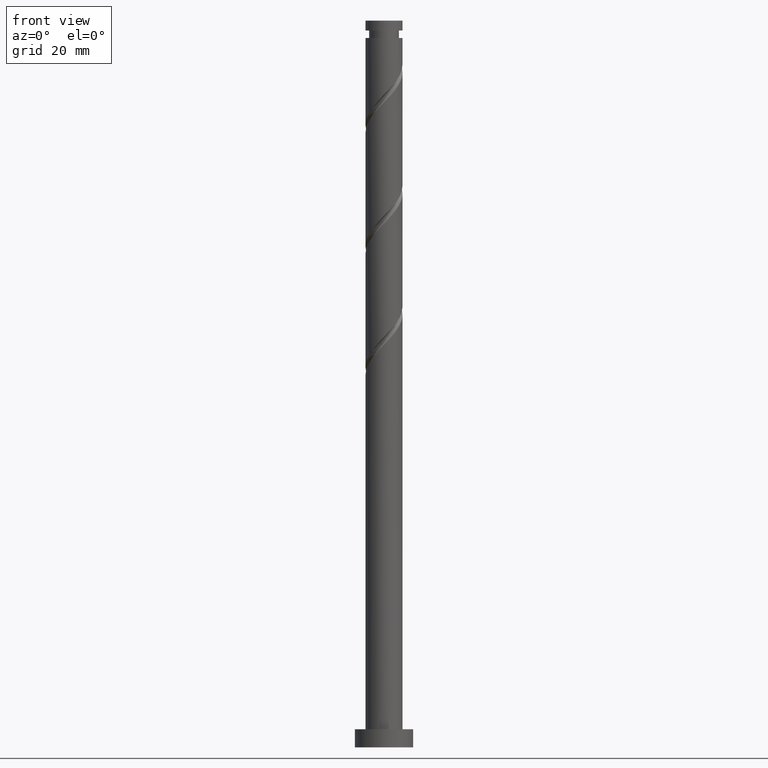
[diagram: clean part render]
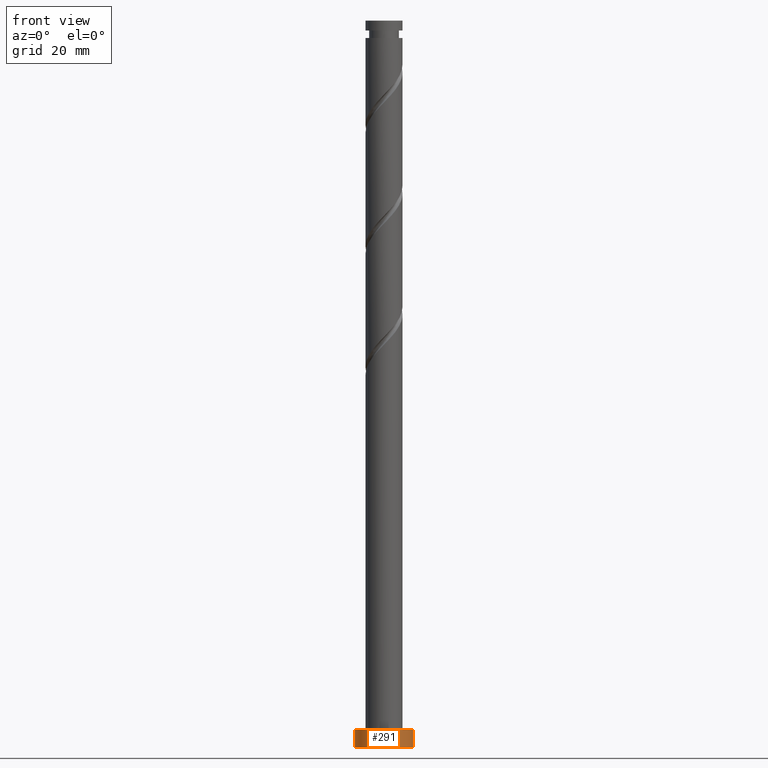
[diagram: same view with one face highlighted and labeled with its STEP entity id]
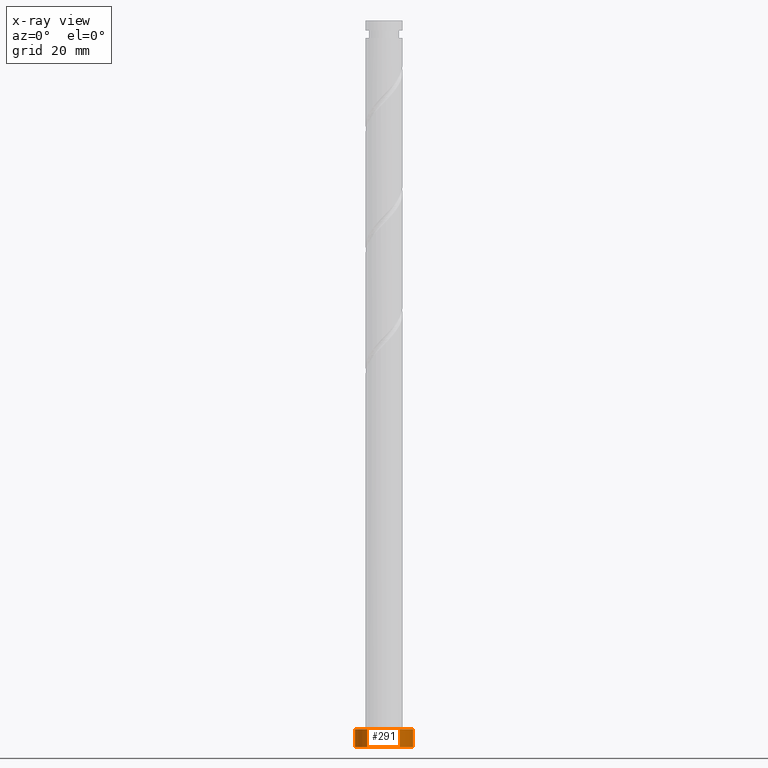
[diagram: x-ray of the same camera — body ghosted, the highlighted face saturated]
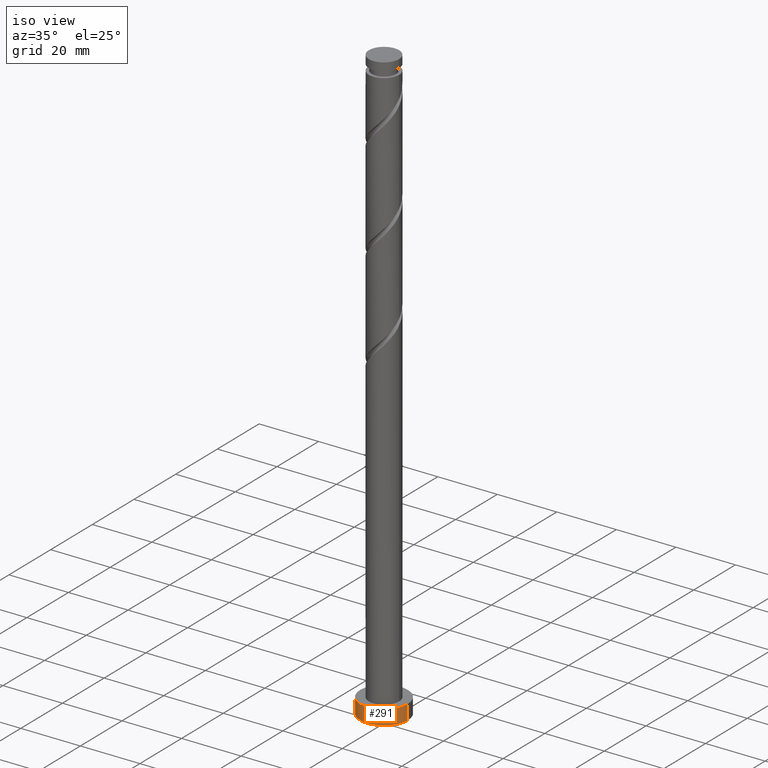
[diagram: same view with one face highlighted and labeled with its STEP entity id]
A machine part, front view. The second image highlights one B-rep face of the part: STEP entity #291.
The next image is the same camera in x-ray: the body ghosted, the highlighted face saturated — about 0% of this face is hidden behind the body in this view.
A second angle (iso view) of the same face is appended — the face is thin or edge-on in the first view.
In plain terms, the highlighted cylindrical surface (edge-blend (fillet) strip) has radius 8 mm, axis along (-0, -0, -1).
Its self-contained STEP definition (entity closure, byte-faithful):
#16 = VERTEX_POINT ( 'NONE', #907 ) ;
#111 = EDGE_CURVE ( 'NONE', #627, #1741, #228, .T. ) ;
#142 = DIRECTION ( 'NONE',  ( -0.000000000000000000, -0.000000000000000000, -1.000000000000000000 ) ) ;
#163 = CYLINDRICAL_SURFACE ( 'NONE', #240, 8.000000000000000000 ) ;
#228 = LINE ( 'NONE', #1479, #1155 ) ;
#240 = AXIS2_PLACEMENT_3D ( 'NONE', #690, #389, #742 ) ;
#242 = DIRECTION ( 'NONE',  ( 0.000000000000000000, 0.000000000000000000, 1.000000000000000000 ) ) ;
#287 = ORIENTED_EDGE ( 'NONE', *, *, #482, .F. ) ;
#291 = ADVANCED_FACE ( 'NONE', ( #570 ), #163, .T. ) ;
#308 = LINE ( 'NONE', #320, #1531 ) ;
#320 = CARTESIAN_POINT ( 'NONE',  ( -8.000000000000000000, 0.000000000000000000, 5.000000000000000000 ) ) ;
#331 = VERTEX_POINT ( 'NONE', #1682 ) ;
#389 = DIRECTION ( 'NONE',  ( -0.000000000000000000, -0.000000000000000000, -1.000000000000000000 ) ) ;
#392 = EDGE_CURVE ( 'NONE', #16, #331, #308, .T. ) ;
#451 = DIRECTION ( 'NONE',  ( -0.000000000000000000, -0.000000000000000000, -1.000000000000000000 ) ) ;
#464 = CARTESIAN_POINT ( 'NONE',  ( 0.000000000000000000, 0.000000000000000000, 5.000000000000000000 ) ) ;
#470 = DIRECTION ( 'NONE',  ( 1.000000000000000000, 0.000000000000000000, 0.000000000000000000 ) ) ;
#482 = EDGE_CURVE ( 'NONE', #16, #627, #1528, .T. ) ;
#570 = FACE_OUTER_BOUND ( 'NONE', #993, .T. ) ;
#627 = VERTEX_POINT ( 'NONE', #740 ) ;
#687 = CIRCLE ( 'NONE', #1301, 8.000000000000000000 ) ;
#690 = CARTESIAN_POINT ( 'NONE',  ( 0.000000000000000000, 0.000000000000000000, 5.000000000000000000 ) ) ;
#714 = ORIENTED_EDGE ( 'NONE', *, *, #392, .T. ) ;
#740 = CARTESIAN_POINT ( 'NONE',  ( 8.000000000000000000, 9.797174393178825657E-16, 5.000000000000000000 ) ) ;
#742 = DIRECTION ( 'NONE',  ( -1.000000000000000000, 0.000000000000000000, 0.000000000000000000 ) ) ;
#907 = CARTESIAN_POINT ( 'NONE',  ( -8.000000000000000000, 0.000000000000000000, 5.000000000000000000 ) ) ;
#985 = DIRECTION ( 'NONE',  ( 0.000000000000000000, 0.000000000000000000, 1.000000000000000000 ) ) ;
#993 = EDGE_LOOP ( 'NONE', ( #1686, #287, #714, #1339 ) ) ;
#1049 = DIRECTION ( 'NONE',  ( 1.000000000000000000, 0.000000000000000000, 0.000000000000000000 ) ) ;
#1096 = AXIS2_PLACEMENT_3D ( 'NONE', #464, #985, #470 ) ;
#1155 = VECTOR ( 'NONE', #142, 1000.000000000000000 ) ;
#1207 = CARTESIAN_POINT ( 'NONE',  ( 8.000000000000000000, 9.797174393178825657E-16, 0.000000000000000000 ) ) ;
#1301 = AXIS2_PLACEMENT_3D ( 'NONE', #1439, #242, #1049 ) ;
#1339 = ORIENTED_EDGE ( 'NONE', *, *, #1428, .T. ) ;
#1428 = EDGE_CURVE ( 'NONE', #331, #1741, #687, .T. ) ;
#1439 = CARTESIAN_POINT ( 'NONE',  ( 0.000000000000000000, 0.000000000000000000, 0.000000000000000000 ) ) ;
#1479 = CARTESIAN_POINT ( 'NONE',  ( 8.000000000000000000, 9.797174393178825657E-16, 5.000000000000000000 ) ) ;
#1528 = CIRCLE ( 'NONE', #1096, 8.000000000000000000 ) ;
#1531 = VECTOR ( 'NONE', #451, 1000.000000000000000 ) ;
#1682 = CARTESIAN_POINT ( 'NONE',  ( -8.000000000000000000, 0.000000000000000000, 0.000000000000000000 ) ) ;
#1686 = ORIENTED_EDGE ( 'NONE', *, *, #111, .F. ) ;
#1741 = VERTEX_POINT ( 'NONE', #1207 ) ;